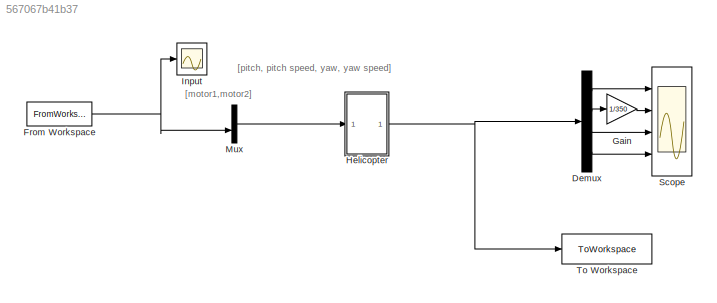
MODEL slx_567067b41b37
KIND model
CONFIG AbsTol = auto
CONFIG EnableMultiTasking = off
CONFIG FixedStep = auto
CONFIG InitFcn = hwinit
CONFIG MaxStep = auto
CONFIG MinStep = auto
CONFIG RelTol = 1e-3
CONFIG SampleTimeConstraint = Unconstrained
CONFIG SolverName = ode45
CONFIG StartTime = 0.0
CONFIG StopTime = Tsim
BLOCK [Demux] Demux
  Ports = [1, 4]
BLOCK [FromWorkspace] From Workspace
  VariableName = simin
BLOCK [Gain] Gain
  Gain = 1/350
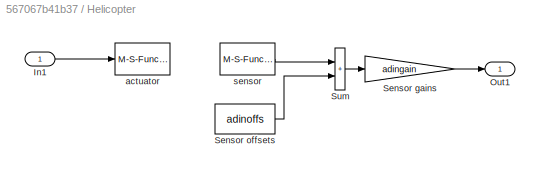
BLOCK [SubSystem] Helicopter
  Ports = [1, 1]
  RequestExecContextInheritance = off
BLOCK [Inport] Helicopter/In1
BLOCK [Outport] Helicopter/Out1
BLOCK [Gain] Helicopter/Sensor gains
  Gain = adingain
BLOCK [Constant] Helicopter/Sensor offsets
  Value = adinoffs
BLOCK [Sum] Helicopter/Sum
  IconShape = rectangular
  Ports = [2, 1]
BLOCK [M-S-Function] Helicopter/actuator
  FunctionName = sf_heli_out
  Parameters = HeliMexHandle,Ts
  Ports = [1]
BLOCK [M-S-Function] Helicopter/sensor
  FunctionName = sf_heli_in
  Parameters = HeliMexHandle
  Ports = [0, 1]
BLOCK [Scope] Input
  Floating = off
  NumInputPorts = 1
  Ports = [1]
  ScopeSpecificationString = Simulink.scopes.TimeScopeBlockCfg('CurrentConfiguration', extmgr.ConfigurationSet(extmgr.Configuration('Core','General UI',true),extmgr.Configuration('Core','Source UI',true),extmgr.Configuration('Sources','WiredSimulink',true,'DataLoggingVariableName','ScopeData1'),extmgr.Configuration('Visuals','Time Domain',true,'SerializedDisplays',{struct('MinYLimReal','0.375','MaxYLimReal','0.625','YLabelRea...<+1529ch>
BLOCK [Mux] Mux
  DisplayOption = bar
  Inputs = 2
  Ports = [2, 1]
BLOCK [Scope] Scope
  Floating = off
  NumInputPorts = 4
  Ports = [4]
  ScopeSpecificationString = Simulink.scopes.TimeScopeBlockCfg('CurrentConfiguration', extmgr.ConfigurationSet(extmgr.Configuration('Core','General UI',true),extmgr.Configuration('Core','Source UI',true),extmgr.Configuration('Sources','WiredSimulink',true,'DataLogging',true,'DataLoggingVariableName','y','DataLoggingSaveFormat','StructureWithTime','DataLoggingDecimation','1','DataLoggingDecimateData',true),extmgr.Configuration...<+3800ch>
BLOCK [ToWorkspace] To Workspace
  FixptAsFi = on
  MaxDataPoints = inf
  Ports = [1]
  SampleTime = -1
  SaveFormat = Structure With Time
  VariableName = simout
ANNOTATION (root): [motor1,motor2]
ANNOTATION (root): [pitch, pitch speed, yaw, yaw speed]
LINE Demux:1 -> Scope:1
LINE Demux:2 -> Gain:1
LINE Demux:3 -> Scope:3
LINE Demux:4 -> Scope:4
NET From Workspace:1 -> Input:1, Mux:2
LINE Gain:1 -> Scope:2
LINE Helicopter/In1:1 -> Helicopter/actuator:1
LINE Helicopter/Sensor gains:1 -> Helicopter/Out1:1
LINE Helicopter/Sensor offsets:1 -> Helicopter/Sum:2
LINE Helicopter/Sum:1 -> Helicopter/Sensor gains:1
LINE Helicopter/sensor:1 -> Helicopter/Sum:1
NET Helicopter:1 -> Demux:1, To Workspace:1
LINE Mux:1 -> Helicopter:1
note: NET lines group one-source signal fan-out (src -> all destinations, sorted); 1:1 wires keep LINE
